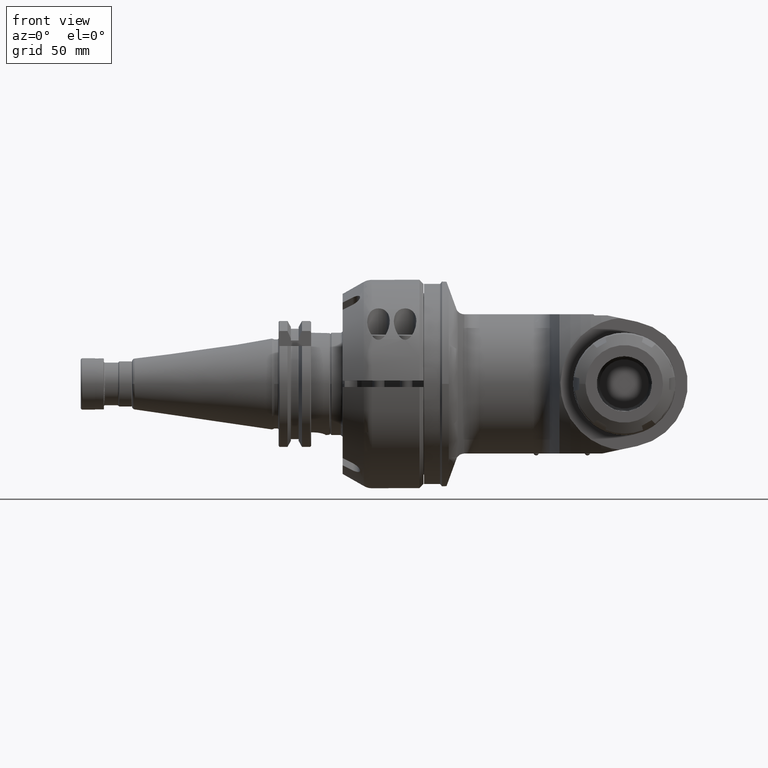
[diagram: clean part render]
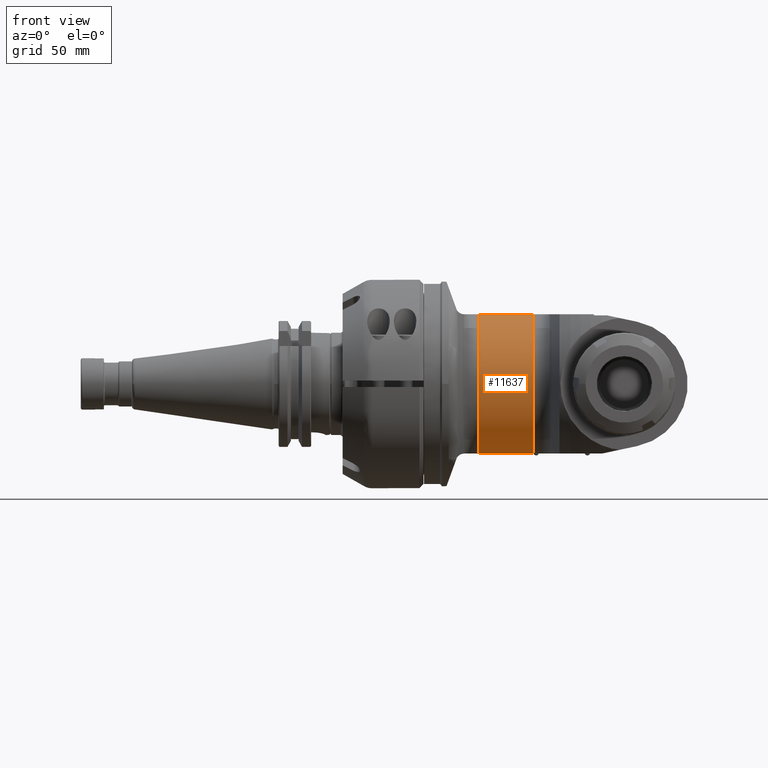
[diagram: same view with one face highlighted and labeled with its STEP entity id]
A machine part, front view. The second image highlights one B-rep face of the part: STEP entity #11637.
In plain terms, the highlighted cylindrical surface (partial cylindrical patch) has radius 36 mm, axis along (-1, -0, 0).
Its self-contained STEP definition (entity closure, byte-faithful):
#876=LINE('',#16484,#1732);
#877=LINE('',#16487,#1733);
#1732=VECTOR('',#13474,26.67897826015);
#1733=VECTOR('',#13477,26.67897826015);
#2576=CYLINDRICAL_SURFACE('',#12354,36.);
#2738=FACE_OUTER_BOUND('',#3389,.T.);
#3389=EDGE_LOOP('',(#7721,#7722,#7723,#7724));
#4115=CIRCLE('',#12355,36.);
#4116=CIRCLE('',#12356,36.);
#4585=VERTEX_POINT('',#16480);
#4586=VERTEX_POINT('',#16481);
#4587=VERTEX_POINT('',#16483);
#4588=VERTEX_POINT('',#16485);
#5867=EDGE_CURVE('',#4585,#4586,#4115,.T.);
#5868=EDGE_CURVE('',#4585,#4587,#876,.T.);
#5869=EDGE_CURVE('',#4588,#4587,#4116,.T.);
#5870=EDGE_CURVE('',#4588,#4586,#877,.T.);
#7721=ORIENTED_EDGE('',*,*,#5867,.F.);
#7722=ORIENTED_EDGE('',*,*,#5868,.T.);
#7723=ORIENTED_EDGE('',*,*,#5869,.F.);
#7724=ORIENTED_EDGE('',*,*,#5870,.T.);
#11637=ADVANCED_FACE('',(#2738),#2576,.T.);
#12354=AXIS2_PLACEMENT_3D('',#16479,#13470,#13471);
#12355=AXIS2_PLACEMENT_3D('',#16482,#13472,#13473);
#12356=AXIS2_PLACEMENT_3D('',#16486,#13475,#13476);
#13470=DIRECTION('center_axis',(-1.,0.,0.));
#13471=DIRECTION('ref_axis',(0.,-1.,0.));
#13472=DIRECTION('center_axis',(-1.,0.,0.));
#13473=DIRECTION('ref_axis',(0.,-1.,0.));
#13474=DIRECTION('',(1.,0.,0.));
#13475=DIRECTION('center_axis',(1.,0.,0.));
#13476=DIRECTION('ref_axis',(0.,-1.,0.));
#13477=DIRECTION('',(-1.,0.,0.));
#16479=CARTESIAN_POINT('Origin',(217.7095440971,0.,0.));
#16480=CARTESIAN_POINT('',(207.1879662404,-11.8321595662,-34.));
#16481=CARTESIAN_POINT('',(207.1879662404,-11.8321595662,34.));
#16482=CARTESIAN_POINT('Origin',(207.1879662404,0.,0.));
#16483=CARTESIAN_POINT('',(233.8669445005,-11.8321595662,-34.));
#16484=CARTESIAN_POINT('',(207.1879662404,-11.8321595662,-34.));
#16485=CARTESIAN_POINT('',(233.8669445005,-11.8321595662,34.));
#16486=CARTESIAN_POINT('Origin',(233.8669445005,0.,0.));
#16487=CARTESIAN_POINT('',(233.8669445005,-11.8321595662,34.));